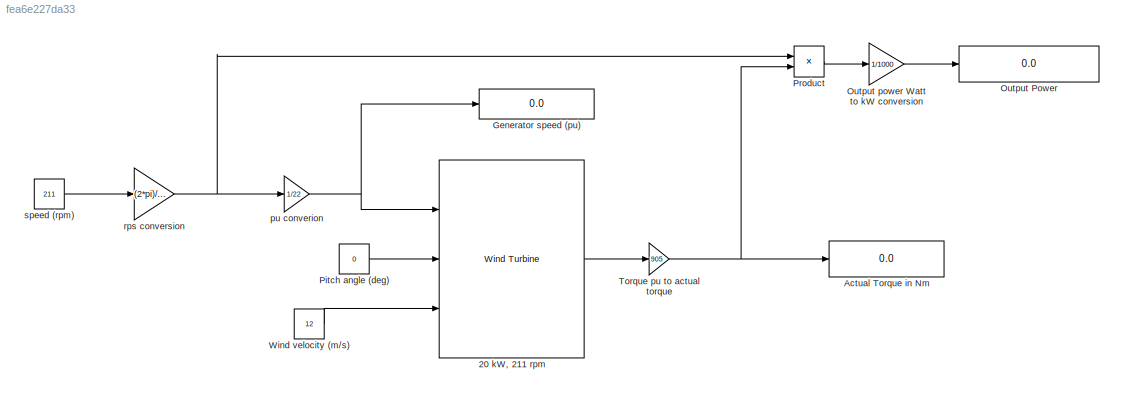
MODEL slx_fea6e227da33
KIND model
CONFIG AbsTol = auto
CONFIG EnableMultiTasking = off
CONFIG FixedStep = auto
CONFIG MaxStep = auto
CONFIG MinStep = auto
CONFIG RelTol = 1e-3
CONFIG SampleTimeConstraint = Unconstrained
CONFIG Solver = VariableStepAuto
CONFIG SolverName = VariableStepAuto
CONFIG StartTime = 0.0
CONFIG StopTime = 10.0
BLOCK [Reference] 20 kW, 211 rpm  REF=re_lib/Wind Generation/Wind Turbine
  Ports = [3, 1]
  SourceBlock = re_lib/Wind Generation/Wind Turbine
  SourceProductBaseCode = PS
  SourceProductName = Simscape Power Systems
  SourceType = Wind Turbine
BLOCK [Display] Actual Torque in Nm
  Decimation = 1
  Ports = [1]
BLOCK [Display] Generator speed (pu)
  Decimation = 1
  Ports = [1]
BLOCK [Display] Output Power
  Decimation = 1
  Ports = [1]
BLOCK [Gain] Output power Watt to kW conversion
  Gain = 1/1000
  OutDataTypeStr = Inherit: Inherit via internal rule
  ParamDataTypeStr = Inherit: Inherit via internal rule
  SaturateOnIntegerOverflow = off
BLOCK [Constant] Pitch angle (deg)
  Value = 0
BLOCK [Product] Product
  InputSameDT = off
  OutDataTypeStr = Inherit: Inherit via internal rule
  Ports = [2, 1]
  RndMeth = Floor
  SaturateOnIntegerOverflow = off
BLOCK [Gain] Torque pu to actual torque 
  Gain = 905
  OutDataTypeStr = Inherit: Inherit via internal rule
  ParamDataTypeStr = Inherit: Inherit via internal rule
  SaturateOnIntegerOverflow = off
BLOCK [Constant] Wind velocity (m//s)
  Value = 12
BLOCK [Gain] pu converion
  Gain = 1/22
  OutDataTypeStr = Inherit: Inherit via internal rule
  ParamDataTypeStr = Inherit: Inherit via internal rule
  SaturateOnIntegerOverflow = off
BLOCK [Gain] rps conversion
  Gain = (2*pi)/60
  OutDataTypeStr = Inherit: Inherit via internal rule
  ParamDataTypeStr = Inherit: Inherit via internal rule
  SaturateOnIntegerOverflow = off
BLOCK [Constant] speed (rpm)
  Value = 211
LINE 20 kW, 211 rpm:1 -> Torque pu to actual torque :1
LINE Output power Watt to kW conversion:1 -> Output Power:1
LINE Pitch angle (deg):1 -> 20 kW, 211 rpm:2
LINE Product:1 -> Output power Watt to kW conversion:1
NET Torque pu to actual torque :1 -> Actual Torque in Nm:1, Product:2
LINE Wind velocity (m//s):1 -> 20 kW, 211 rpm:3
NET pu converion:1 -> 20 kW, 211 rpm:1, Generator speed (pu):1
NET rps conversion:1 -> Product:1, pu converion:1
LINE speed (rpm):1 -> rps conversion:1
note: NET lines group one-source signal fan-out (src -> all destinations, sorted); 1:1 wires keep LINE
